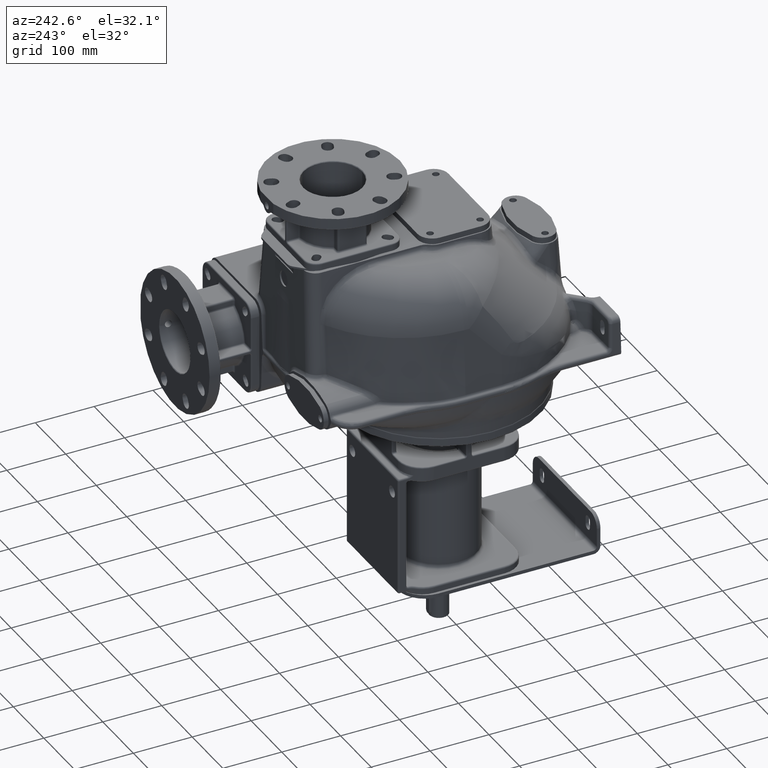
[diagram: clean part render]
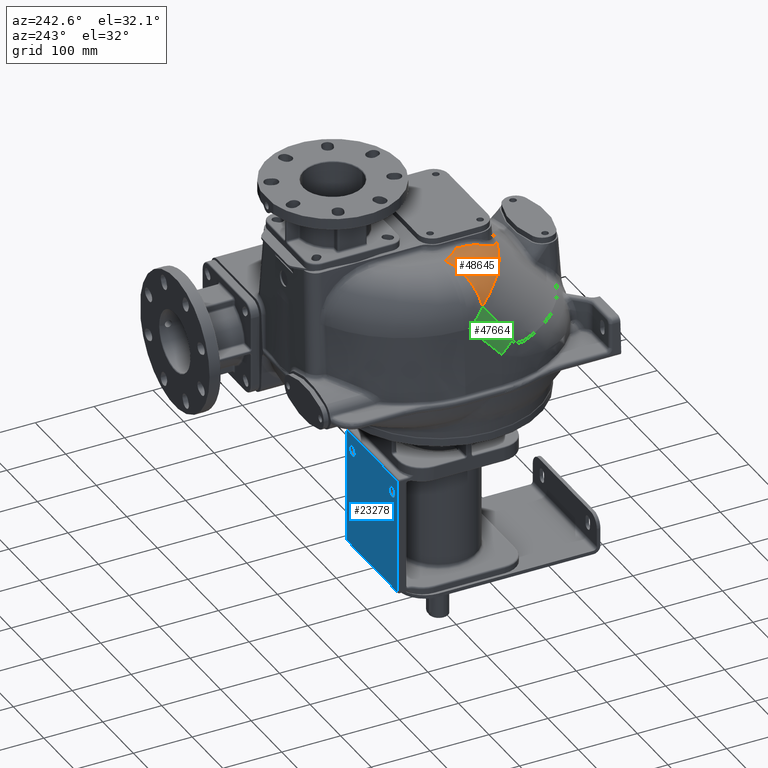
[diagram: same view with three faces highlighted in distinct colors, each labeled with its STEP entity id]
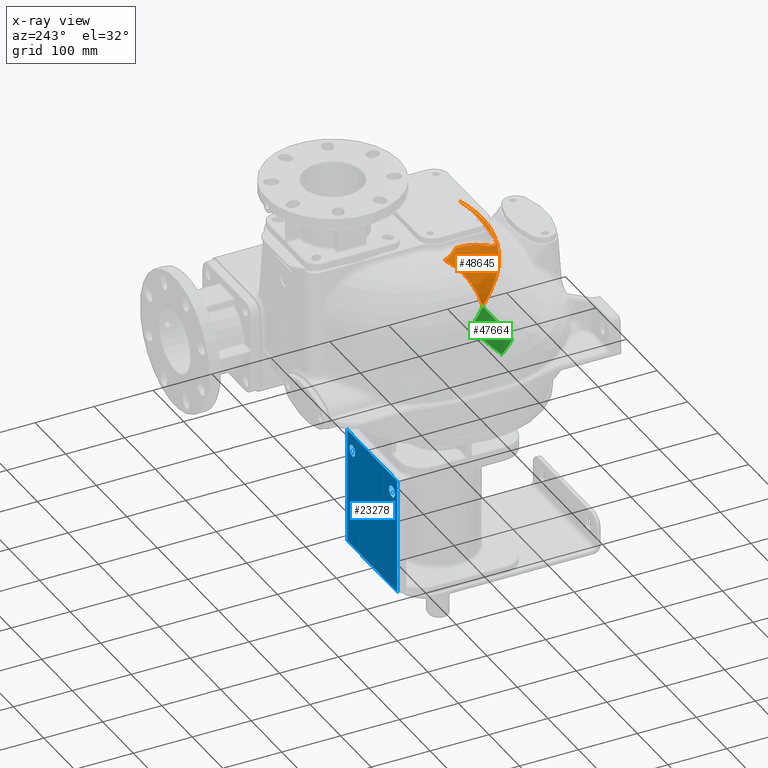
[diagram: x-ray of the same camera — body ghosted, the three highlighted faces saturated]
A machine part, auxiliary view with three faces highlighted in distinct colors.
The next image is the same camera in x-ray (body ghosted, the three faces saturated) — at least one of them is partly hidden behind the body in this view.
Their STEP definitions:

[orange] entity #48645 — the highlighted face is a freeform B-spline surface patch.
#8195=CARTESIAN_POINT('',(-6.174737051487E1,2.323145715342E2,1.649999993066E2));
#8196=CARTESIAN_POINT('',(-6.556575832775E1,2.358345590159E2,1.649999993066E2));
#8197=CARTESIAN_POINT('',(-7.225172384075E1,2.429449013333E2,1.650000003236E2));
#8198=CARTESIAN_POINT('',(-7.973680774014E1,2.533574303006E2,1.649999999075E2));
#8199=CARTESIAN_POINT('',(-8.327313771314E1,2.601358815241E2,1.65E2));
#8200=CARTESIAN_POINT('',(-8.465616449938E1,2.634844852817E2,1.65E2));
#12845=CARTESIAN_POINT('',(-1.537361269370E2,2.349541265056E2,
1.135303253978E2));
#12852=CARTESIAN_POINT('',(9.348022613443E1,1.498799592167E2,1.401822419273E2));
#12853=CARTESIAN_POINT('',(8.333548152724E1,1.471139116795E2,1.406522123283E2));
#12854=CARTESIAN_POINT('',(6.274162326728E1,1.429284171957E2,1.413336934389E2));
#12855=CARTESIAN_POINT('',(3.131864338725E1,1.407656359539E2,1.416784544085E2));
#12856=CARTESIAN_POINT('',(2.468402786373E-1,1.427241977363E2,
1.413627667604E2));
#12857=CARTESIAN_POINT('',(-3.073388708175E1,1.488285757003E2,
1.403698461896E2));
#12858=CARTESIAN_POINT('',(-5.992435208643E1,1.587508015801E2,
1.385401236160E2));
#12859=CARTESIAN_POINT('',(-8.621319887879E1,1.716879875611E2,
1.357639428243E2));
#12860=CARTESIAN_POINT('',(-1.101280101369E2,1.877084084538E2,
1.317731233878E2));
#12861=CARTESIAN_POINT('',(-1.290752071793E2,2.043253624036E2,
1.268095869247E2));
#12862=CARTESIAN_POINT('',(-1.435219031923E2,2.202222557746E2,
1.208789073681E2));
#12863=CARTESIAN_POINT('',(-1.507271653538E2,2.301926209656E2,
1.160544325365E2));
#12864=CARTESIAN_POINT('',(-1.537361269370E2,2.349541265056E2,
1.135303253978E2));
#12979=CARTESIAN_POINT('',(-6.174737051487E1,2.323145715342E2,
1.649999993066E2));
#12980=CARTESIAN_POINT('',(-6.153363240647E1,2.275427551897E2,
1.649999999265E2));
#12981=CARTESIAN_POINT('',(-6.115164822838E1,2.177786418342E2,
1.646154021055E2));
#12982=CARTESIAN_POINT('',(-6.079817296162E1,2.015687867487E2,
1.618470161115E2));
#12983=CARTESIAN_POINT('',(-6.078192144616E1,1.922416686067E2,
1.587017322672E2));
#12984=CARTESIAN_POINT('',(-6.081478731774E1,1.878199008310E2,
1.568420322006E2));
#12986=CARTESIAN_POINT('',(-6.081478731774E1,1.878199008310E2,
1.568420322006E2));
#12987=CARTESIAN_POINT('',(-6.083471999528E1,1.852743300057E2,
1.557703419332E2));
#12988=CARTESIAN_POINT('',(-6.042476150459E1,1.801639334328E2,
1.535044516762E2));
#12989=CARTESIAN_POINT('',(-5.834392160873E1,1.715682620327E2,
1.490607978829E2));
#12990=CARTESIAN_POINT('',(-5.475826357577E1,1.650761433209E2,
1.456234061044E2));
#12991=CARTESIAN_POINT('',(-5.000855485853E1,1.596948832653E2,
1.429904005708E2));
#12992=CARTESIAN_POINT('',(-4.423424481857E1,1.554067514729E2,
1.412917258823E2));
#12993=CARTESIAN_POINT('',(-3.739912651732E1,1.521373518774E2,
1.406214968405E2));
#12994=CARTESIAN_POINT('',(-3.041673600100E1,1.502126974009E2,
1.410217648880E2));
#12995=CARTESIAN_POINT('',(-2.567807752734E1,1.497790186350E2,
1.419485062699E2));
#12996=CARTESIAN_POINT('',(-2.329782435282E1,1.497377860821E2,
1.425237950823E2));
#12998=CARTESIAN_POINT('',(-2.329782435282E1,1.497377860821E2,
1.425237950823E2));
#12999=CARTESIAN_POINT('',(-1.657982988102E1,1.496303642633E2,
1.441531478603E2));
#13000=CARTESIAN_POINT('',(-2.348836567641E0,1.493923281026E2,
1.467399824987E2));
#13001=CARTESIAN_POINT('',(2.311820004413E1,1.491464277645E2,1.486845307085E2));
#13002=CARTESIAN_POINT('',(4.956476004034E1,1.492212737917E2,1.481381614529E2));
#13003=CARTESIAN_POINT('',(7.381330811575E1,1.495518435102E2,1.452429225239E2));
#13004=CARTESIAN_POINT('',(8.726384593997E1,1.497850140003E2,1.420702393898E2));
#13005=CARTESIAN_POINT('',(9.348022613443E1,1.498799592167E2,1.401822419273E2));
#13206=CARTESIAN_POINT('',(-8.465616556745E1,2.634844819449E2,8.5E1));
#13207=DIRECTION('',(-3.817282481727E-1,9.242746045125E-1,-4.465971204515E-7));
#13208=DIRECTION('',(-8.635001842083E-1,-3.566280537582E-1,3.566284665375E-1));
#13209=AXIS2_PLACEMENT_3D('',#13206,#13207,#13208);
#16842=CARTESIAN_POINT('',(-8.465616449938E1,2.634844852817E2,1.65E2));
#16844=VERTEX_POINT('',#16842);
#17563=VERTEX_POINT('',#12845);
#17580=VERTEX_POINT('',#8195);
#17586=VERTEX_POINT('',#12852);
#17604=VERTEX_POINT('',#12998);
#17605=VERTEX_POINT('',#12986);
#48453=CARTESIAN_POINT('',(1.011550402233E2,1.339901328017E2,1.117192126020E2));
#48454=CARTESIAN_POINT('',(1.004691481641E2,1.337629254935E2,1.117192126020E2));
#48455=CARTESIAN_POINT('',(9.788678459692E1,1.329213602560E2,1.117192126020E2));
#48456=CARTESIAN_POINT('',(9.309761683648E1,1.314565283392E2,1.117192126020E2));
#48457=CARTESIAN_POINT('',(8.649335807168E1,1.296420564047E2,1.117192126020E2));
#48458=CARTESIAN_POINT('',(7.913215301375E1,1.278745251070E2,1.117192126020E2));
#48459=CARTESIAN_POINT('',(7.121980318198E1,1.262674276500E2,1.117192126020E2));
#48460=CARTESIAN_POINT('',(6.294550404645E1,1.249016115833E2,1.117192126020E2));
#48461=CARTESIAN_POINT('',(5.439964768800E1,1.238210916014E2,1.117192126020E2));
#48462=CARTESIAN_POINT('',(4.564433095948E1,1.230583415555E2,1.117192126020E2));
#48463=CARTESIAN_POINT('',(3.678171755388E1,1.226387676906E2,1.117192126020E2));
#48464=CARTESIAN_POINT('',(2.789552004557E1,1.225721159204E2,1.117192126020E2));
#48465=CARTESIAN_POINT('',(1.900562659701E1,1.228597156693E2,1.117192126020E2));
#48466=CARTESIAN_POINT('',(1.011013481902E1,1.235059973883E2,1.117192126020E2));
#48467=CARTESIAN_POINT('',(1.322526629520E0,1.245007540723E2,1.117192126020E2));
#48468=CARTESIAN_POINT('',(-7.221267816505E0,1.258102018451E2,
1.117192126020E2));
#48469=CARTESIAN_POINT('',(-1.541660592139E1,1.273875825018E2,
1.117192126020E2));
#48470=CARTESIAN_POINT('',(-2.329917264485E1,1.292067211853E2,
1.117192126020E2));
#48471=CARTESIAN_POINT('',(-3.104101804403E1,1.312898589621E2,
1.117192126020E2));
#48472=CARTESIAN_POINT('',(-3.883440486535E1,1.336965127511E2,
1.117192126020E2));
#48473=CARTESIAN_POINT('',(-4.676386730918E1,1.364811404718E2,
1.117192126020E2));
#48474=CARTESIAN_POINT('',(-5.475359798318E1,1.396513930887E2,
1.117192126020E2));
#48475=CARTESIAN_POINT('',(-6.259182903679E1,1.431416229124E2,
1.117192126020E2));
#48476=CARTESIAN_POINT('',(-7.006635430256E1,1.468448770844E2,
1.117192126020E2));
#48477=CARTESIAN_POINT('',(-7.708750117702E1,1.506817222380E2,
1.117192126020E2));
#48478=CARTESIAN_POINT('',(-8.369557529386E1,1.546313570206E2,
1.117192126020E2));
#48479=CARTESIAN_POINT('',(-9.006171715990E1,1.587692312591E2,
1.117192126020E2));
#48480=CARTESIAN_POINT('',(-9.633628545599E1,1.631956044294E2,
1.117192126020E2));
#48481=CARTESIAN_POINT('',(-1.025688856199E2,1.679697347987E2,
1.117192126020E2));
#48482=CARTESIAN_POINT('',(-1.086758112207E2,1.730563833876E2,
1.117192126020E2));
#48483=CARTESIAN_POINT('',(-1.144684491218E2,1.783032480551E2,
1.117192126020E2));
#48484=CARTESIAN_POINT('',(-1.197995586123E2,1.835402308415E2,
1.117192126020E2));
#48485=CARTESIAN_POINT('',(-1.246297361421E2,1.886676297723E2,
1.117192126020E2));
#48486=CARTESIAN_POINT('',(-1.290174295330E2,1.936856915265E2,
1.117192126020E2));
#48487=CARTESIAN_POINT('',(-1.330516850167E2,1.986504566220E2,
1.117192126020E2));
#48488=CARTESIAN_POINT('',(-1.367779132325E2,2.035886915637E2,
1.117192126020E2));
#48489=CARTESIAN_POINT('',(-1.401793245812E2,2.084494796197E2,
1.117192126020E2));
#48490=CARTESIAN_POINT('',(-1.432319483711E2,2.131557456624E2,
1.117192126020E2));
#48491=CARTESIAN_POINT('',(-1.459556896298E2,2.176855154170E2,
1.117192126020E2));
#48492=CARTESIAN_POINT('',(-1.484203415466E2,2.221117892307E2,
1.117192126020E2));
#48493=CARTESIAN_POINT('',(-1.506985765253E2,2.265477052375E2,
1.117192126020E2));
#48494=CARTESIAN_POINT('',(-1.528285850353E2,2.310803841003E2,
1.117192126020E2));
#48495=CARTESIAN_POINT('',(-1.543485003944E2,2.346514915418E2,
1.117192126020E2));
#48496=CARTESIAN_POINT('',(-1.551639264136E2,2.367089212510E2,
1.117192126020E2));
#48497=CARTESIAN_POINT('',(-1.553589589834E2,2.372099809537E2,
1.117192126020E2));
#48498=CARTESIAN_POINT('',(9.739006905467E1,1.453557996021E2,1.455091164974E2));
#48499=CARTESIAN_POINT('',(9.674089864530E1,1.451407566683E2,1.455091164974E2));
#48500=CARTESIAN_POINT('',(9.429676397078E1,1.443442388430E2,1.455091164974E2));
#48501=CARTESIAN_POINT('',(8.976373217346E1,1.429577472262E2,1.455091164974E2));
#48502=CARTESIAN_POINT('',(8.351230306686E1,1.412402096235E2,1.455091164974E2));
#48503=CARTESIAN_POINT('',(7.654393979119E1,1.395670014957E2,1.455091164974E2));
#48504=CARTESIAN_POINT('',(6.905345041283E1,1.380455860810E2,1.455091164974E2));
#48505=CARTESIAN_POINT('',(6.121998219376E1,1.367525331024E2,1.455091164974E2));
#48506=CARTESIAN_POINT('',(5.312926048658E1,1.357295638315E2,1.455091164974E2));
#48507=CARTESIAN_POINT('',(4.484142402039E1,1.350075531554E2,1.455091164974E2));
#48508=CARTESIAN_POINT('',(3.645319037854E1,1.346104511807E2,1.455091164974E2));
#48509=CARTESIAN_POINT('',(2.804409854030E1,1.345473881153E2,1.455091164974E2));
#48510=CARTESIAN_POINT('',(1.963288261707E1,1.348195311651E2,1.455091164974E2));
#48511=CARTESIAN_POINT('',(1.121870022028E1,1.354308335578E2,1.455091164974E2));
#48512=CARTESIAN_POINT('',(2.902704213892E0,1.363721664154E2,1.455091164974E2));
#48513=CARTESIAN_POINT('',(-5.183740929233E0,1.376115215089E2,
1.455091164974E2));
#48514=CARTESIAN_POINT('',(-1.293972961372E1,1.391043522910E2,
1.455091164974E2));
#48515=CARTESIAN_POINT('',(-2.039743117059E1,1.408254721796E2,
1.455091164974E2));
#48516=CARTESIAN_POINT('',(-2.771796501475E1,1.427952896896E2,
1.455091164974E2));
#48517=CARTESIAN_POINT('',(-3.508221469434E1,1.450694738795E2,
1.455091164974E2));
#48518=CARTESIAN_POINT('',(-4.257029759195E1,1.476991558657E2,
1.455091164974E2));
#48519=CARTESIAN_POINT('',(-5.010934940733E1,1.506906601308E2,
1.455091164974E2));
#48520=CARTESIAN_POINT('',(-5.749886946974E1,1.539811710359E2,
1.455091164974E2));
#48521=CARTESIAN_POINT('',(-6.453849773941E1,1.574690560034E2,
1.455091164974E2));
#48522=CARTESIAN_POINT('',(-7.114429684802E1,1.610789817730E2,
1.455091164974E2));
#48523=CARTESIAN_POINT('',(-7.736010640731E1,1.647941750307E2,
1.455091164974E2));
#48524=CARTESIAN_POINT('',(-8.334549892639E1,1.686846171359E2,
1.455091164974E2));
#48525=CARTESIAN_POINT('',(-8.924148814429E1,1.728439690801E2,
1.455091164974E2));
#48526=CARTESIAN_POINT('',(-9.509394873379E1,1.773270047780E2,
1.455091164974E2));
#48527=CARTESIAN_POINT('',(-1.008226220375E2,1.820986761370E2,
1.455091164974E2));
#48528=CARTESIAN_POINT('',(-1.062526730976E2,1.870171917109E2,
1.455091164974E2));
#48529=CARTESIAN_POINT('',(-1.112458107791E2,1.919222677667E2,
1.455091164974E2));
#48530=CARTESIAN_POINT('',(-1.157644550336E2,1.967190831685E2,
1.455091164974E2));
#48531=CARTESIAN_POINT('',(-1.198632340489E2,2.014068580564E2,
1.455091164974E2));
#48532=CARTESIAN_POINT('',(-1.236252442486E2,2.060367500116E2,
1.455091164974E2));
#48533=CARTESIAN_POINT('',(-1.270926775235E2,2.106321999937E2,
1.455091164974E2));
#48534=CARTESIAN_POINT('',(-1.302508868477E2,2.151456415613E2,
1.455091164974E2));
#48535=CARTESIAN_POINT('',(-1.330780421846E2,2.195045205704E2,
1.455091164974E2));
#48536=CARTESIAN_POINT('',(-1.355935497263E2,2.236882209097E2,
1.455091164974E2));
#48537=CARTESIAN_POINT('',(-1.378626596622E2,2.277635655346E2,
1.455091164974E2));
#48538=CARTESIAN_POINT('',(-1.399528314106E2,2.318336742387E2,
1.455091164974E2));
#48539=CARTESIAN_POINT('',(-1.418984078023E2,2.359742269107E2,
1.455091164974E2));
#48540=CARTESIAN_POINT('',(-1.432828658807E2,2.392273001931E2,
1.455091164974E2));
#48541=CARTESIAN_POINT('',(-1.440241641325E2,2.410977098917E2,
1.455091164974E2));
#48542=CARTESIAN_POINT('',(-1.442013802942E2,2.415529971672E2,
1.455091164974E2));
#48543=CARTESIAN_POINT('',(8.810589155556E1,1.733828051869E2,1.658414056581E2));
#48544=CARTESIAN_POINT('',(8.754727438030E1,1.731977588205E2,1.658414056581E2));
#48545=CARTESIAN_POINT('',(8.544400329198E1,1.725123250252E2,1.658414056581E2));
#48546=CARTESIAN_POINT('',(8.154258635680E1,1.713190155652E2,1.658414056581E2));
#48547=CARTESIAN_POINT('',(7.616121256454E1,1.698405118095E2,1.658414056581E2));
#48548=CARTESIAN_POINT('',(7.016157193566E1,1.683998985710E2,1.658414056581E2));
#48549=CARTESIAN_POINT('',(6.371136338651E1,1.670897695789E2,1.658414056581E2));
#48550=CARTESIAN_POINT('',(5.696495594222E1,1.659761457101E2,1.658414056581E2));
#48551=CARTESIAN_POINT('',(4.999656710268E1,1.650950928023E2,1.658414056581E2));
#48552=CARTESIAN_POINT('',(4.286150698945E1,1.644735428002E2,1.658414056581E2));
#48553=CARTESIAN_POINT('',(3.564306342869E1,1.641318550658E2,1.658414056581E2));
#48554=CARTESIAN_POINT('',(2.841048358173E1,1.640776415161E2,1.658414056581E2));
#48555=CARTESIAN_POINT('',(2.117965574405E1,1.643116693370E2,1.658414056581E2));
#48556=CARTESIAN_POINT('',(1.395235142069E1,1.648367149541E2,1.658414056581E2));
#48557=CARTESIAN_POINT('',(6.799320818977E0,1.656463080813E2,1.658414056581E2));
#48558=CARTESIAN_POINT('',(-1.593302675586E-1,1.667128191217E2,
1.658414056581E2));
#48559=CARTESIAN_POINT('',(-6.831911451592E0,1.679971553340E2,
1.658414056581E2));
#48560=CARTESIAN_POINT('',(-1.324192274919E1,1.694765671595E2,
1.658414056581E2));
#48561=CARTESIAN_POINT('',(-1.952352931239E1,1.711669441571E2,
1.658414056581E2));
#48562=CARTESIAN_POINT('',(-2.582955431591E1,1.731144668094E2,
1.658414056581E2));
#48563=CARTESIAN_POINT('',(-3.222922355295E1,1.753620625493E2,
1.658414056581E2));
#48564=CARTESIAN_POINT('',(-3.865693019967E1,1.779127848400E2,
1.658414056581E2));
#48565=CARTESIAN_POINT('',(-4.493995772824E1,1.807108016972E2,
1.658414056581E2));
#48566=CARTESIAN_POINT('',(-5.090715789030E1,1.836676000155E2,
1.658414056581E2));
#48567=CARTESIAN_POINT('',(-5.648873603965E1,1.867179571338E2,
1.658414056581E2));
#48568=CARTESIAN_POINT('',(-6.173724635127E1,1.898550326234E2,
1.658414056581E2));
#48569=CARTESIAN_POINT('',(-6.678373539367E1,1.931353229525E2,
1.658414056581E2));
#48570=CARTESIAN_POINT('',(-7.174617287852E1,1.966362176739E2,
1.658414056581E2));
#48571=CARTESIAN_POINT('',(-7.666123365129E1,2.004014325767E2,
1.658414056581E2));
#48572=CARTESIAN_POINT('',(-8.145716104333E1,2.043963902826E2,
1.658414056581E2));
#48573=CARTESIAN_POINT('',(-8.599309620180E1,2.085052180445E2,
1.658414056581E2));
#48574=CARTESIAN_POINT('',(-9.015281707246E1,2.125918333842E2,
1.658414056581E2));
#48575=CARTESIAN_POINT('',(-9.390324024470E1,2.165734509998E2,
1.658414056581E2));
#48576=CARTESIAN_POINT('',(-9.728957493470E1,2.204467596526E2,
1.658414056581E2));
#48577=CARTESIAN_POINT('',(-1.003802457200E2,2.242508759153E2,
1.658414056581E2));
#48578=CARTESIAN_POINT('',(-1.032095072639E2,2.280010401655E2,
1.658414056581E2));
#48579=CARTESIAN_POINT('',(-1.057679959896E2,2.316579475640E2,
1.658414056581E2));
#48580=CARTESIAN_POINT('',(-1.080391605777E2,2.351601924221E2,
1.658414056581E2));
#48581=CARTESIAN_POINT('',(-1.100411771250E2,2.384905077727E2,
1.658414056581E2));
#48582=CARTESIAN_POINT('',(-1.118280930737E2,2.417004835189E2,
1.658414056581E2));
#48583=CARTESIAN_POINT('',(-1.134545129543E2,2.448685348696E2,
1.658414056581E2));
#48584=CARTESIAN_POINT('',(-1.149452915680E2,2.480421294973E2,
1.658414056581E2));
#48585=CARTESIAN_POINT('',(-1.159957206772E2,2.505109509350E2,
1.658414056581E2));
#48586=CARTESIAN_POINT('',(-1.165542246076E2,2.519201812791E2,
1.658414056581E2));
#48587=CARTESIAN_POINT('',(-1.166875066493E2,2.522625966838E2,
1.658414056581E2));
#48588=CARTESIAN_POINT('',(7.683647028370E1,2.074028498223E2,1.649767247547E2));
#48589=CARTESIAN_POINT('',(7.638776941959E1,2.072542142157E2,1.649767247547E2));
#48590=CARTESIAN_POINT('',(7.469824907542E1,2.067036176453E2,1.649767247547E2));
#48591=CARTESIAN_POINT('',(7.156350575926E1,2.057447986512E2,1.649767247547E2));
#48592=CARTESIAN_POINT('',(6.723823196813E1,2.045564415585E2,1.649767247547E2));
#48593=CARTESIAN_POINT('',(6.241445679456E1,2.033981591773E2,1.649767247547E2));
#48594=CARTESIAN_POINT('',(5.722697323173E1,2.023444961679E2,1.649767247547E2));
#48595=CARTESIAN_POINT('',(5.180007371586E1,2.014486688920E2,1.649767247547E2));
#48596=CARTESIAN_POINT('',(4.619400716002E1,2.007398784470E2,1.649767247547E2));
#48597=CARTESIAN_POINT('',(4.045822257281E1,2.002402707124E2,1.649767247547E2));
#48598=CARTESIAN_POINT('',(3.465970632651E1,1.999658464937E2,1.649767247547E2));
#48599=CARTESIAN_POINT('',(2.885521305616E1,1.999223747594E2,1.649767247547E2));
#48600=CARTESIAN_POINT('',(2.305717671795E1,2.001101371387E2,1.649767247547E2));
#48601=CARTESIAN_POINT('',(1.727054164171E1,2.005304816186E2,1.649767247547E2));
#48602=CARTESIAN_POINT('',(1.152915435155E1,2.011801649939E2,1.649767247547E2));
#48603=CARTESIAN_POINT('',(5.939454508438E0,2.020368725866E2,1.649767247547E2));
#48604=CARTESIAN_POINT('',(5.819467956822E-1,2.030681316535E2,
1.649767247547E2));
#48605=CARTESIAN_POINT('',(-4.556345720658E0,2.042541507697E2,
1.649767247547E2));
#48606=CARTESIAN_POINT('',(-9.576870276192E0,2.056053342466E2,
1.649767247547E2));
#48607=CARTESIAN_POINT('',(-1.459838949814E1,2.071563450397E2,
1.649767247547E2));
#48608=CARTESIAN_POINT('',(-1.967690863221E1,2.089401526980E2,
1.649767247547E2));
#48609=CARTESIAN_POINT('',(-2.475563020347E1,2.109558402203E2,
1.649767247547E2));
#48610=CARTESIAN_POINT('',(-2.969556293456E1,2.131560525977E2,
1.649767247547E2));
#48611=CARTESIAN_POINT('',(-3.436101675134E1,2.154682015454E2,
1.649767247547E2));
#48612=CARTESIAN_POINT('',(-3.869936388033E1,2.178393369595E2,
1.649767247547E2));
#48613=CARTESIAN_POINT('',(-4.277373650241E1,2.202746752543E2,
1.649767247547E2));
#48614=CARTESIAN_POINT('',(-4.668055551876E1,2.228143445209E2,
1.649767247547E2));
#48615=CARTESIAN_POINT('',(-5.050981908920E1,2.255159835374E2,
1.649767247547E2));
#48616=CARTESIAN_POINT('',(-5.428703502478E1,2.284098853981E2,
1.649767247547E2));
#48617=CARTESIAN_POINT('',(-5.795076663324E1,2.314620440931E2,
1.649767247547E2));
#48618=CARTESIAN_POINT('',(-6.140139630696E1,2.345880477919E2,
1.649767247547E2));
#48619=CARTESIAN_POINT('',(-6.454949012316E1,2.376811902466E2,
1.649767247547E2));
#48620=CARTESIAN_POINT('',(-6.736742282912E1,2.406732956225E2,
1.649767247547E2));
#48621=CARTESIAN_POINT('',(-6.988897060224E1,2.435579800147E2,
1.649767247547E2));
#48622=CARTESIAN_POINT('',(-7.216474888048E1,2.463597442482E2,
1.649767247547E2));
#48623=CARTESIAN_POINT('',(-7.421937787570E1,2.490838745813E2,
1.649767247547E2));
#48624=CARTESIAN_POINT('',(-7.604990722403E1,2.517010943621E2,
1.649767247547E2));
#48625=CARTESIAN_POINT('',(-7.764619307674E1,2.541635302416E2,
1.649767247547E2));
#48626=CARTESIAN_POINT('',(-7.902491840239E1,2.564579805468E2,
1.649767247547E2));
#48627=CARTESIAN_POINT('',(-8.022653240303E1,2.586175448323E2,
1.649767247547E2));
#48628=CARTESIAN_POINT('',(-8.129003594944E1,2.606906511188E2,
1.649767247547E2));
#48629=CARTESIAN_POINT('',(-8.222876697935E1,2.626905222201E2,
1.649767247547E2));
#48630=CARTESIAN_POINT('',(-8.287374141377E1,2.642073945571E2,
1.649767247547E2));
#48631=CARTESIAN_POINT('',(-8.321036395337E1,2.650568311630E2,
1.649767247547E2));
#48632=CARTESIAN_POINT('',(-8.329031740386E1,2.652622392066E2,
1.649767247547E2));
#48633=(BOUNDED_SURFACE()B_SPLINE_SURFACE(3,3,((#48453,#48454,#48455,#48456,
#48457,#48458,#48459,#48460,#48461,#48462,#48463,#48464,#48465,#48466,#48467,
#48468,#48469,#48470,#48471,#48472,#48473,#48474,#48475,#48476,#48477,#48478,
#48479,#48480,#48481,#48482,#48483,#48484,#48485,#48486,#48487,#48488,#48489,
#48490,#48491,#48492,#48493,#48494,#48495,#48496,#48497),(#48498,#48499,#48500,
#48501,#48502,#48503,#48504,#48505,#48506,#48507,#48508,#48509,#48510,#48511,
#48512,#48513,#48514,#48515,#48516,#48517,#48518,#48519,#48520,#48521,#48522,
#48523,#48524,#48525,#48526,#48527,#48528,#48529,#48530,#48531,#48532,#48533,
#48534,#48535,#48536,#48537,#48538,#48539,#48540,#48541,#48542),(#48543,#48544,
#48545,#48546,#48547,#48548,#48549,#48550,#48551,#48552,#48553,#48554,#48555,
#48556,#48557,#48558,#48559,#48560,#48561,#48562,#48563,#48564,#48565,#48566,
#48567,#48568,#48569,#48570,#48571,#48572,#48573,#48574,#48575,#48576,#48577,
#48578,#48579,#48580,#48581,#48582,#48583,#48584,#48585,#48586,#48587),(#48588,
#48589,#48590,#48591,#48592,#48593,#48594,#48595,#48596,#48597,#48598,#48599,
#48600,#48601,#48602,#48603,#48604,#48605,#48606,#48607,#48608,#48609,#48610,
#48611,#48612,#48613,#48614,#48615,#48616,#48617,#48618,#48619,#48620,#48621,
#48622,#48623,#48624,#48625,#48626,#48627,#48628,#48629,#48630,#48631,#48632)),
.UNSPECIFIED.,.F.,.F.,.F.)B_SPLINE_SURFACE_WITH_KNOTS((4,4),(4,1,1,1,1,1,1,1,1,
1,1,1,1,1,1,1,1,1,1,1,1,1,1,1,1,1,1,1,1,1,1,1,1,1,1,1,1,1,1,1,1,1,4),(0.E0,
1.E0),(4.328790775352E-1,4.351309438617E-1,4.413430202415E-1,4.484809030045E-1,
4.564581803152E-1,4.649066767704E-1,4.736013366777E-1,4.825408871300E-1,
4.916872772087E-1,5.008935652899E-1,5.100670179732E-1,5.192281158218E-1,
5.284363384871E-1,5.376490202760E-1,5.466549908051E-1,5.552760093240E-1,
5.635675399246E-1,5.717547248261E-1,5.800975492800E-1,5.887528370930E-1,
5.976472368348E-1,6.065071099540E-1,6.150362272177E-1,6.231176140699E-1,
6.308610138198E-1,6.384961518361E-1,6.462564874523E-1,6.542595354509E-1,
6.624105324357E-1,6.704338861232E-1,6.780493844894E-1,6.851637986991E-1,
6.918635739549E-1,6.982953047063E-1,7.045479461825E-1,7.105520872214E-1,
7.161732411653E-1,7.214055735760E-1,7.263942877399E-1,7.313207266850E-1,
7.362871754865E-1,7.413146366992E-1,7.429299273484E-1),.UNSPECIFIED.)GEOMETRIC_REPRESENTATION_ITEM()RATIONAL_B_SPLINE_SURFACE(((1.105168857521E0,
1.105168857521E0,1.105168857521E0,1.105168857521E0,1.105168857521E0,
1.105168857521E0,1.105168857521E0,1.105168857521E0,1.105168857521E0,
1.105168857521E0,1.105168857521E0,1.105168857521E0,1.105168857521E0,
1.105168857521E0,1.105168857521E0,1.105168857521E0,1.105168857521E0,
1.105168857521E0,1.105168857521E0,1.105168857521E0,1.105168857521E0,
1.105168857521E0,1.105168857521E0,1.105168857521E0,1.105168857521E0,
1.105168857521E0,1.105168857521E0,1.105168857521E0,1.105168857521E0,
1.105168857521E0,1.105168857521E0,1.105168857521E0,1.105168857521E0,
1.105168857521E0,1.105168857521E0,1.105168857521E0,1.105168857521E0,
1.105168857521E0,1.105168857521E0,1.105168857521E0,1.105168857521E0,
1.105168857521E0,1.105168857521E0,1.105168857521E0,1.105168857521E0),(
9.649437141595E-1,9.649437141595E-1,9.649437141595E-1,9.649437141595E-1,
9.649437141595E-1,9.649437141595E-1,9.649437141595E-1,9.649437141595E-1,
9.649437141595E-1,9.649437141595E-1,9.649437141595E-1,9.649437141595E-1,
9.649437141595E-1,9.649437141595E-1,9.649437141595E-1,9.649437141595E-1,
9.649437141595E-1,9.649437141595E-1,9.649437141595E-1,9.649437141595E-1,
9.649437141595E-1,9.649437141595E-1,9.649437141595E-1,9.649437141595E-1,
9.649437141595E-1,9.649437141595E-1,9.649437141595E-1,9.649437141595E-1,
9.649437141595E-1,9.649437141595E-1,9.649437141595E-1,9.649437141595E-1,
9.649437141595E-1,9.649437141595E-1,9.649437141595E-1,9.649437141595E-1,
9.649437141595E-1,9.649437141595E-1,9.649437141595E-1,9.649437141595E-1,
9.649437141595E-1,9.649437141595E-1,9.649437141595E-1,9.649437141595E-1,
9.649437141595E-1),(9.649437141595E-1,9.649437141595E-1,9.649437141595E-1,
9.649437141595E-1,9.649437141595E-1,9.649437141595E-1,9.649437141595E-1,
9.649437141595E-1,9.649437141595E-1,9.649437141595E-1,9.649437141595E-1,
9.649437141595E-1,9.649437141595E-1,9.649437141595E-1,9.649437141595E-1,
9.649437141595E-1,9.649437141595E-1,9.649437141595E-1,9.649437141595E-1,
9.649437141595E-1,9.649437141595E-1,9.649437141595E-1,9.649437141595E-1,
9.649437141595E-1,9.649437141595E-1,9.649437141595E-1,9.649437141595E-1,
9.649437141595E-1,9.649437141595E-1,9.649437141595E-1,9.649437141595E-1,
9.649437141595E-1,9.649437141595E-1,9.649437141595E-1,9.649437141595E-1,
9.649437141595E-1,9.649437141595E-1,9.649437141595E-1,9.649437141595E-1,
9.649437141595E-1,9.649437141595E-1,9.649437141595E-1,9.649437141595E-1,
9.649437141595E-1,9.649437141595E-1),(1.105168857521E0,1.105168857521E0,
1.105168857521E0,1.105168857521E0,1.105168857521E0,1.105168857521E0,
1.105168857521E0,1.105168857521E0,1.105168857521E0,1.105168857521E0,
1.105168857521E0,1.105168857521E0,1.105168857521E0,1.105168857521E0,
1.105168857521E0,1.105168857521E0,1.105168857521E0,1.105168857521E0,
1.105168857521E0,1.105168857521E0,1.105168857521E0,1.105168857521E0,
1.105168857521E0,1.105168857521E0,1.105168857521E0,1.105168857521E0,
1.105168857521E0,1.105168857521E0,1.105168857521E0,1.105168857521E0,
1.105168857521E0,1.105168857521E0,1.105168857521E0,1.105168857521E0,
1.105168857521E0,1.105168857521E0,1.105168857521E0,1.105168857521E0,
1.105168857521E0,1.105168857521E0,1.105168857521E0,1.105168857521E0,
1.105168857521E0,1.105168857521E0,1.105168857521E0)))REPRESENTATION_ITEM('')SURFACE());
#48634=ORIENTED_EDGE('',*,*,#38812,.F.);
#48636=ORIENTED_EDGE('',*,*,#48635,.T.);
#48638=ORIENTED_EDGE('',*,*,#48637,.T.);
#48639=ORIENTED_EDGE('',*,*,#48443,.T.);
#48640=ORIENTED_EDGE('',*,*,#47712,.T.);
#48642=ORIENTED_EDGE('',*,*,#48641,.T.);
#48643=EDGE_LOOP('',(#48634,#48636,#48638,#48639,#48640,#48642));
#48644=FACE_OUTER_BOUND('',#48643,.F.);
#48645=ADVANCED_FACE('',(#48644),#48633,.T.);
#8201=B_SPLINE_CURVE_WITH_KNOTS('',3,(#8195,#8196,#8197,#8198,#8199,#8200),
.UNSPECIFIED.,.F.,.F.,(4,1,1,4),(0.E0,3.333333333333E-1,6.666666666667E-1,1.E0),
.UNSPECIFIED.);
#12865=B_SPLINE_CURVE_WITH_KNOTS('',3,(#12852,#12853,#12854,#12855,#12856,
#12857,#12858,#12859,#12860,#12861,#12862,#12863,#12864),.UNSPECIFIED.,.F.,.F.,(
4,1,1,1,1,1,1,1,1,1,4),(0.E0,1.E-1,2.E-1,3.E-1,4.E-1,5.E-1,6.E-1,7.E-1,8.E-1,
9.E-1,1.E0),.UNSPECIFIED.);
#12985=B_SPLINE_CURVE_WITH_KNOTS('',3,(#12979,#12980,#12981,#12982,#12983,
#12984),.UNSPECIFIED.,.F.,.F.,(4,1,1,4),(0.E0,3.333333333333E-1,
6.666666666667E-1,1.E0),.UNSPECIFIED.);
#12997=B_SPLINE_CURVE_WITH_KNOTS('',3,(#12986,#12987,#12988,#12989,#12990,
#12991,#12992,#12993,#12994,#12995,#12996),.UNSPECIFIED.,.F.,.F.,(4,1,1,1,1,1,1,
1,4),(0.E0,1.25E-1,2.5E-1,3.75E-1,5.E-1,6.25E-1,7.5E-1,8.75E-1,1.E0),
.UNSPECIFIED.);
#13006=B_SPLINE_CURVE_WITH_KNOTS('',3,(#12998,#12999,#13000,#13001,#13002,
#13003,#13004,#13005),.UNSPECIFIED.,.F.,.F.,(4,1,1,1,1,4),(0.E0,2.E-1,4.E-1,
6.E-1,8.E-1,1.E0),.UNSPECIFIED.);
#13210=CIRCLE('',#13209,8.E1);
#38812=EDGE_CURVE('',#17580,#16844,#8201,.T.);
#47712=EDGE_CURVE('',#17586,#17563,#12865,.T.);
#48443=EDGE_CURVE('',#17604,#17586,#13006,.T.);
#48635=EDGE_CURVE('',#17580,#17605,#12985,.T.);
#48637=EDGE_CURVE('',#17605,#17604,#12997,.T.);
#48641=EDGE_CURVE('',#17563,#16844,#13210,.T.);

[blue] entity #23278 — the highlighted planar face has unit normal (0, 1, 0).
#1793=DIRECTION('',(-1.E0,0.E0,0.E0));
#1794=VECTOR('',#1793,1.64E2);
#1795=CARTESIAN_POINT('',(1.01E2,3.33E2,-4.165E2));
#1796=LINE('',#1795,#1794);
#1797=CARTESIAN_POINT('',(1.01E2,3.33E2,-2.195E2));
#1798=CARTESIAN_POINT('',(1.01E2,3.33E2,-2.851666666667E2));
#1799=CARTESIAN_POINT('',(1.01E2,3.33E2,-3.508333333333E2));
#1800=CARTESIAN_POINT('',(1.01E2,3.33E2,-4.165E2));
#1802=DIRECTION('',(1.E0,0.E0,0.E0));
#1803=VECTOR('',#1802,1.64E2);
#1804=CARTESIAN_POINT('',(-6.3E1,3.33E2,-2.195E2));
#1805=LINE('',#1804,#1803);
#1806=CARTESIAN_POINT('',(-6.3E1,3.33E2,-4.165E2));
#1807=CARTESIAN_POINT('',(-6.3E1,3.33E2,-3.508333333333E2));
#1808=CARTESIAN_POINT('',(-6.3E1,3.33E2,-2.851666666667E2));
#1809=CARTESIAN_POINT('',(-6.3E1,3.33E2,-2.195E2));
#1811=CARTESIAN_POINT('',(-4.6E1,3.33E2,-2.475E2));
#1812=DIRECTION('',(0.E0,1.E0,0.E0));
#1813=DIRECTION('',(0.E0,0.E0,1.E0));
#1814=AXIS2_PLACEMENT_3D('',#1811,#1812,#1813);
#1816=CARTESIAN_POINT('',(-4.6E1,3.33E2,-2.475E2));
#1817=DIRECTION('',(0.E0,1.E0,0.E0));
#1818=DIRECTION('',(0.E0,0.E0,-1.E0));
#1819=AXIS2_PLACEMENT_3D('',#1816,#1817,#1818);
#1821=CARTESIAN_POINT('',(8.4E1,3.33E2,-2.475E2));
#1822=DIRECTION('',(0.E0,1.E0,0.E0));
#1823=DIRECTION('',(0.E0,0.E0,1.E0));
#1824=AXIS2_PLACEMENT_3D('',#1821,#1822,#1823);
#1826=CARTESIAN_POINT('',(8.4E1,3.33E2,-2.475E2));
#1827=DIRECTION('',(0.E0,1.E0,0.E0));
#1828=DIRECTION('',(0.E0,0.E0,-1.E0));
#1829=AXIS2_PLACEMENT_3D('',#1826,#1827,#1828);
#19455=CARTESIAN_POINT('',(1.01E2,3.33E2,-4.165E2));
#19456=CARTESIAN_POINT('',(-6.3E1,3.33E2,-4.165E2));
#19457=VERTEX_POINT('',#19455);
#19458=VERTEX_POINT('',#19456);
#19463=CARTESIAN_POINT('',(-6.3E1,3.33E2,-2.195E2));
#19464=CARTESIAN_POINT('',(1.01E2,3.33E2,-2.195E2));
#19465=VERTEX_POINT('',#19463);
#19466=VERTEX_POINT('',#19464);
#19616=CARTESIAN_POINT('',(-4.6E1,3.33E2,-2.38E2));
#19617=CARTESIAN_POINT('',(-4.6E1,3.33E2,-2.57E2));
#19618=VERTEX_POINT('',#19616);
#19619=VERTEX_POINT('',#19617);
#19620=CARTESIAN_POINT('',(8.4E1,3.33E2,-2.38E2));
#19621=CARTESIAN_POINT('',(8.4E1,3.33E2,-2.57E2));
#19622=VERTEX_POINT('',#19620);
#19623=VERTEX_POINT('',#19621);
#23254=CARTESIAN_POINT('',(1.9E1,3.33E2,-3.145E2));
#23255=DIRECTION('',(0.E0,1.E0,0.E0));
#23256=DIRECTION('',(0.E0,0.E0,-1.E0));
#23257=AXIS2_PLACEMENT_3D('',#23254,#23255,#23256);
#23258=PLANE('',#23257);
#23259=ORIENTED_EDGE('',*,*,#23146,.F.);
#23261=ORIENTED_EDGE('',*,*,#23260,.F.);
#23262=ORIENTED_EDGE('',*,*,#21647,.F.);
#23263=ORIENTED_EDGE('',*,*,#23246,.F.);
#23264=EDGE_LOOP('',(#23259,#23261,#23262,#23263));
#23265=FACE_OUTER_BOUND('',#23264,.F.);
#23267=ORIENTED_EDGE('',*,*,#23266,.T.);
#23269=ORIENTED_EDGE('',*,*,#23268,.T.);
#23270=EDGE_LOOP('',(#23267,#23269));
#23271=FACE_BOUND('',#23270,.F.);
#23273=ORIENTED_EDGE('',*,*,#23272,.T.);
#23275=ORIENTED_EDGE('',*,*,#23274,.T.);
#23276=EDGE_LOOP('',(#23273,#23275));
#23277=FACE_BOUND('',#23276,.F.);
#23278=ADVANCED_FACE('',(#23265,#23271,#23277),#23258,.T.);
#1801=B_SPLINE_CURVE_WITH_KNOTS('',3,(#1797,#1798,#1799,#1800),.UNSPECIFIED.,
.F.,.F.,(4,4),(0.E0,1.E0),.UNSPECIFIED.);
#1810=B_SPLINE_CURVE_WITH_KNOTS('',3,(#1806,#1807,#1808,#1809),.UNSPECIFIED.,
.F.,.F.,(4,4),(0.E0,1.E0),.UNSPECIFIED.);
#1815=CIRCLE('',#1814,9.5E0);
#1820=CIRCLE('',#1819,9.5E0);
#1825=CIRCLE('',#1824,9.5E0);
#1830=CIRCLE('',#1829,9.5E0);
#21647=EDGE_CURVE('',#19465,#19466,#1805,.T.);
#23146=EDGE_CURVE('',#19457,#19458,#1796,.T.);
#23246=EDGE_CURVE('',#19458,#19465,#1810,.T.);
#23260=EDGE_CURVE('',#19466,#19457,#1801,.T.);
#23266=EDGE_CURVE('',#19618,#19619,#1815,.T.);
#23268=EDGE_CURVE('',#19619,#19618,#1820,.T.);
#23272=EDGE_CURVE('',#19622,#19623,#1825,.T.);
#23274=EDGE_CURVE('',#19623,#19622,#1830,.T.);

[green] entity #47664 — the highlighted face is a freeform B-spline surface patch.
#8163=CARTESIAN_POINT('',(-1.646074313307E2,2.634844466097E2,8.779197114017E1));
#8164=CARTESIAN_POINT('',(-1.648497243141E2,2.571326772605E2,8.085360789907E1));
#8165=CARTESIAN_POINT('',(-1.653279934969E2,2.446491058417E2,6.715777044311E1));
#8166=CARTESIAN_POINT('',(-1.660277632916E2,2.265956506770E2,4.711898536447E1));
#8167=CARTESIAN_POINT('',(-1.664825124759E2,2.150669340676E2,3.409667254235E1));
#8168=CARTESIAN_POINT('',(-1.667076171085E2,2.094463961597E2,2.765051926820E1));
#12609=CARTESIAN_POINT('',(-8.675635101314E1,2.094463945064E2,
2.485855763581E1));
#12610=DIRECTION('',(-2.631190762576E-2,-6.569501461359E-1,-7.534747434447E-1));
#12611=DIRECTION('',(-9.330673959688E-1,-2.543474345891E-1,2.543474338340E-1));
#12612=AXIS2_PLACEMENT_3D('',#12609,#12610,#12611);
#12845=CARTESIAN_POINT('',(-1.537361269370E2,2.349541265056E2,
1.135303253978E2));
#12846=CARTESIAN_POINT('',(-1.545768089432E2,2.288907225400E2,
1.054314351523E2));
#12847=CARTESIAN_POINT('',(-1.562627385482E2,2.173477647599E2,
8.960606019950E1));
#12848=CARTESIAN_POINT('',(-1.588119261746E2,2.018853966670E2,
6.686502035880E1));
#12849=CARTESIAN_POINT('',(-1.605383785071E2,1.930693076340E2,
5.234420323722E1));
#12850=CARTESIAN_POINT('',(-1.614017426234E2,1.890986014203E2,
4.520635427036E1));
#13211=CARTESIAN_POINT('',(-8.465616499586E1,2.634844052798E2,
8.500001636817E1));
#13212=DIRECTION('',(2.574905407872E-2,6.750129442258E-1,7.373564343936E-1));
#13213=DIRECTION('',(-9.993908469307E-1,6.236256460568E-7,3.489892649973E-2));
#13214=AXIS2_PLACEMENT_3D('',#13211,#13212,#13213);
#16846=CARTESIAN_POINT('',(-1.646074313307E2,2.634844466097E2,
8.779197114017E1));
#16848=VERTEX_POINT('',#16846);
#17563=VERTEX_POINT('',#12845);
#17564=VERTEX_POINT('',#12850);
#17565=VERTEX_POINT('',#8168);
#47627=CARTESIAN_POINT('',(-1.532664397983E2,2.349351570240E2,
1.146349405687E2));
#47628=CARTESIAN_POINT('',(-1.534441205064E2,2.302760560534E2,
1.095468308065E2));
#47629=CARTESIAN_POINT('',(-1.538926037508E2,2.185528135898E2,
9.670395102758E1));
#47630=CARTESIAN_POINT('',(-1.546052262068E2,2.001079008943E2,
7.629711388342E1));
#47631=CARTESIAN_POINT('',(-1.551518450761E2,1.862152152517E2,
6.064399749065E1));
#47632=CARTESIAN_POINT('',(-1.554269863025E2,1.793486140823E2,
5.276498364506E1));
#47633=CARTESIAN_POINT('',(-1.554342633432E2,1.791670919493E2,
5.255659646431E1));
#47634=CARTESIAN_POINT('',(-1.605569133413E2,2.440533199551E2,
1.065402579233E2));
#47635=CARTESIAN_POINT('',(-1.607342655988E2,2.394028332100E2,
1.014615537574E2));
#47636=CARTESIAN_POINT('',(-1.611818258127E2,2.277037310450E2,
8.864510611289E1));
#47637=CARTESIAN_POINT('',(-1.618924258290E2,2.093111941161E2,
6.829618406341E1));
#47638=CARTESIAN_POINT('',(-1.624364876469E2,1.954838306958E2,
5.271629204212E1));
#47639=CARTESIAN_POINT('',(-1.627095184623E2,1.886699101118E2,
4.489771245998E1));
#47640=CARTESIAN_POINT('',(-1.627167391069E2,1.884897952195E2,
4.469094025300E1));
#47641=CARTESIAN_POINT('',(-1.644244554074E2,2.542019003073E2,
9.738251665902E1));
#47642=CARTESIAN_POINT('',(-1.646014420970E2,2.495610012567E2,
9.231428098893E1));
#47643=CARTESIAN_POINT('',(-1.650479749714E2,2.378887674163E2,
7.952725249836E1));
#47644=CARTESIAN_POINT('',(-1.657563239979E2,2.195545250890E2,
5.924279036218E1));
#47645=CARTESIAN_POINT('',(-1.662975397994E2,2.057998657678E2,
4.374439758842E1));
#47646=CARTESIAN_POINT('',(-1.665682217123E2,1.990445790509E2,
3.599308177237E1));
#47647=CARTESIAN_POINT('',(-1.665753795876E2,1.988660304274E2,
3.578810704271E1));
#47648=CARTESIAN_POINT('',(-1.646025308983E2,2.646814996473E2,
8.779283065304E1));
#47649=CARTESIAN_POINT('',(-1.647791400961E2,2.600505010155E2,
8.273540493248E1));
#47650=CARTESIAN_POINT('',(-1.652246121220E2,2.484060118710E2,
6.997875516838E1));
#47651=CARTESIAN_POINT('',(-1.659306367376E2,2.301319655562E2,
4.976085545190E1));
#47652=CARTESIAN_POINT('',(-1.664689136935E2,2.164523817434E2,
3.434662020865E1));
#47653=CARTESIAN_POINT('',(-1.667371700891E2,2.097576413702E2,
2.666476211914E1));
#47654=CARTESIAN_POINT('',(-1.667442631477E2,2.095807101031E2,
2.646164349559E1));
#47655=(BOUNDED_SURFACE()B_SPLINE_SURFACE(3,3,((#47627,#47628,#47629,#47630,
#47631,#47632,#47633),(#47634,#47635,#47636,#47637,#47638,#47639,#47640),
(#47641,#47642,#47643,#47644,#47645,#47646,#47647),(#47648,#47649,#47650,#47651,
#47652,#47653,#47654)),.UNSPECIFIED.,.F.,.F.,.F.)B_SPLINE_SURFACE_WITH_KNOTS((4,
4),(4,1,1,1,4),(0.E0,1.E0),(1.239399870735E-1,3.439220989435E-1,
6.782653730533E-1,1.E0,1.008737535524E0),.UNSPECIFIED.)GEOMETRIC_REPRESENTATION_ITEM()RATIONAL_B_SPLINE_SURFACE(((1.017531013505E0,1.017531013505E0,
1.017531013505E0,1.017531013505E0,1.017531013505E0,1.017531013505E0,
1.017531013505E0),(9.941563288316E-1,9.941563288316E-1,9.941563288316E-1,
9.941563288316E-1,9.941563288316E-1,9.941563288316E-1,9.941563288316E-1),(
9.941563288316E-1,9.941563288316E-1,9.941563288316E-1,9.941563288316E-1,
9.941563288316E-1,9.941563288316E-1,9.941563288316E-1),(1.017531013505E0,
1.017531013505E0,1.017531013505E0,1.017531013505E0,1.017531013505E0,
1.017531013505E0,1.017531013505E0)))REPRESENTATION_ITEM('')SURFACE());
#47657=ORIENTED_EDGE('',*,*,#47656,.T.);
#47658=ORIENTED_EDGE('',*,*,#47601,.T.);
#47659=ORIENTED_EDGE('',*,*,#38777,.F.);
#47661=ORIENTED_EDGE('',*,*,#47660,.T.);
#47662=EDGE_LOOP('',(#47657,#47658,#47659,#47661));
#47663=FACE_OUTER_BOUND('',#47662,.F.);
#47664=ADVANCED_FACE('',(#47663),#47655,.T.);
#8169=B_SPLINE_CURVE_WITH_KNOTS('',3,(#8163,#8164,#8165,#8166,#8167,#8168),
.UNSPECIFIED.,.F.,.F.,(4,1,1,4),(0.E0,3.333333333333E-1,6.666666666667E-1,1.E0),
.UNSPECIFIED.);
#12613=CIRCLE('',#12612,8.000000000001E1);
#12851=B_SPLINE_CURVE_WITH_KNOTS('',3,(#12845,#12846,#12847,#12848,#12849,
#12850),.UNSPECIFIED.,.F.,.F.,(4,1,1,4),(0.E0,3.333333333333E-1,
6.666666666667E-1,1.E0),.UNSPECIFIED.);
#13215=CIRCLE('',#13214,8.E1);
#38777=EDGE_CURVE('',#16848,#17565,#8169,.T.);
#47601=EDGE_CURVE('',#17564,#17565,#12613,.T.);
#47656=EDGE_CURVE('',#17563,#17564,#12851,.T.);
#47660=EDGE_CURVE('',#16848,#17563,#13215,.T.);